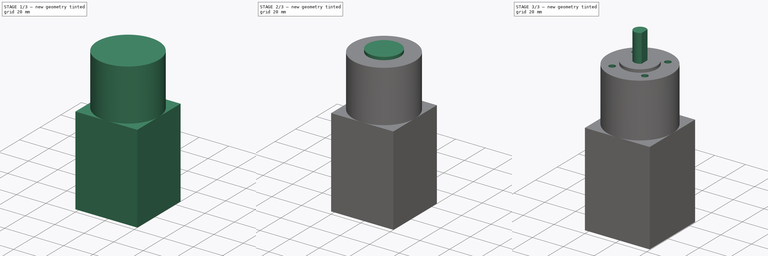
[diagram: build sequence overview — one tinted view per stage of 3, left to right]
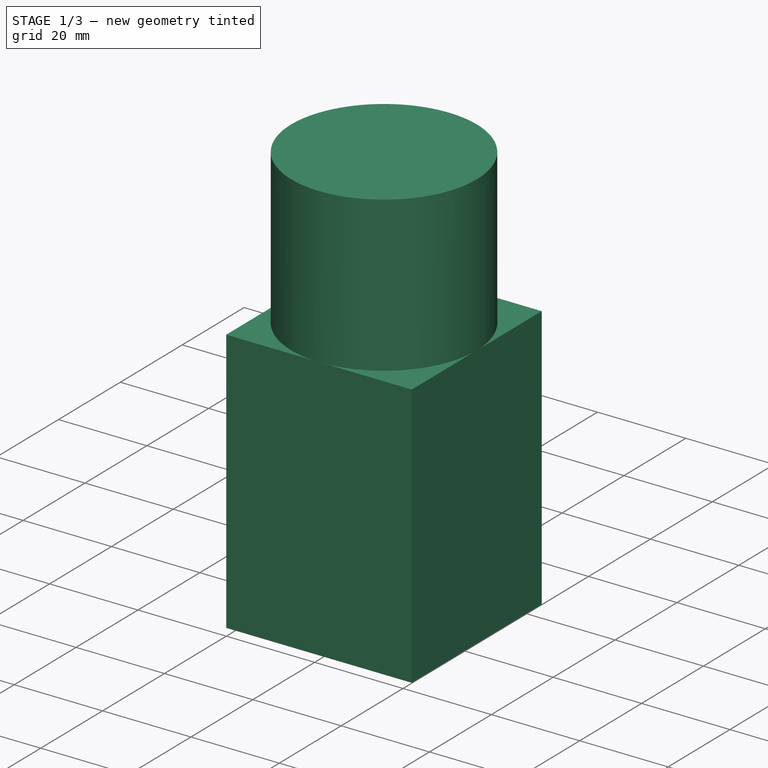
[diagram: stage 1 of 3 — iso view after this stage's code; geometry added in this stage tinted green]
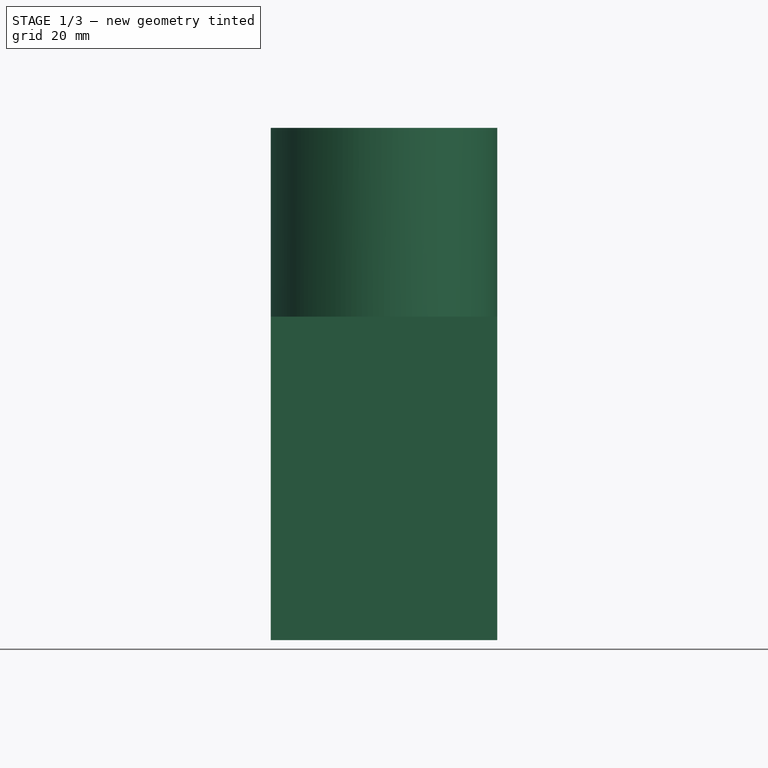
[diagram: stage 1 of 3 — front view after this stage's code; geometry added in this stage tinted green]
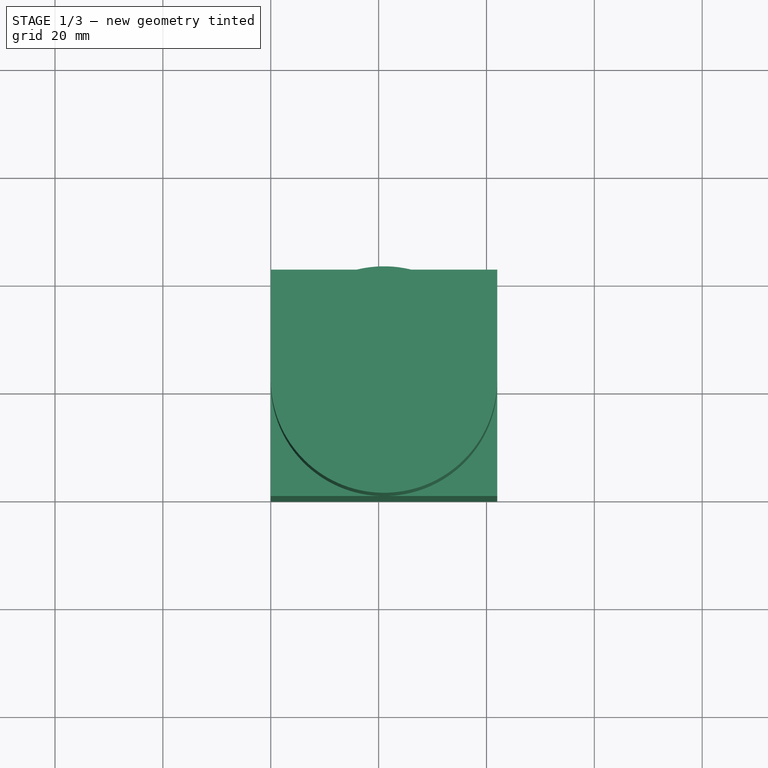
[diagram: stage 1 of 3 — top view after this stage's code; geometry added in this stage tinted green]
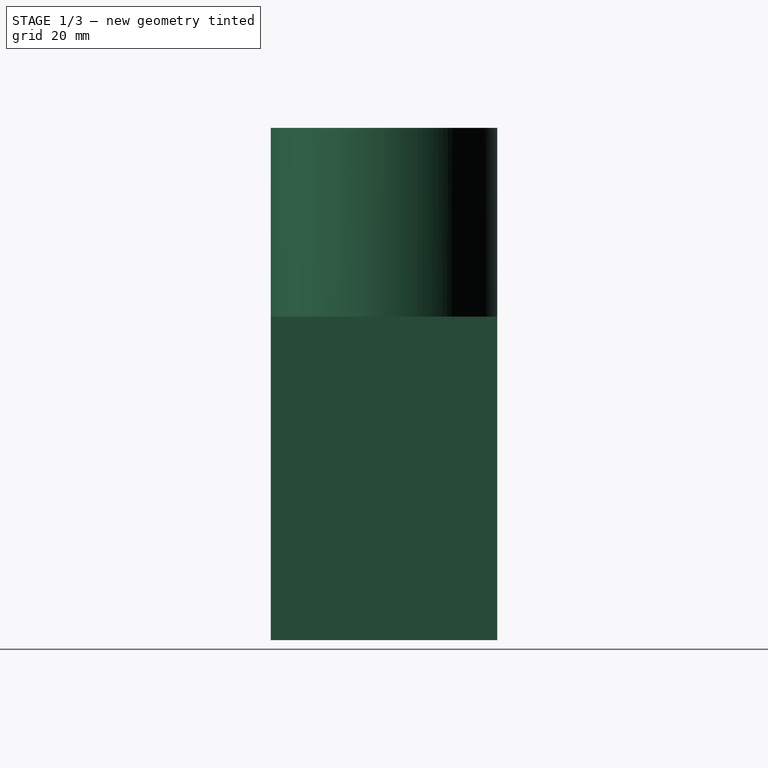
[diagram: stage 1 of 3 — right view after this stage's code; geometry added in this stage tinted green]
FCSTD DOCUMENT  (FreeCAD 0.17RUnknown)
Label: PB30605391
License: All rights reserved
LicenseURL: http://en.wikipedia.org/wiki/All_rights_reserved
objects: Sketcher::SketchObject×5, PartDesign::Pad×4, PartDesign::Pocket×1, PartDesign::Body×1, App::MeasureDistance×1
note: 16 computed .brp shape members not serialized (recipe doc carries the construction recipe); baked Part::Feature solids carry a one-line shape summary decoded from their .brp

FEATURE [Sketcher::SketchObject] Sketch
  MapMode = 5
  Support = -> [XY_Plane]
  sketch-geometry (4):
    g0: LineSegment StartX=0 StartY=0 StartZ=0 EndX=42 EndY=0 EndZ=0
    g1: LineSegment StartX=42 StartY=0 StartZ=0 EndX=42 EndY=42 EndZ=0
    g2: LineSegment StartX=42 StartY=42 StartZ=0 EndX=0 EndY=42 EndZ=0
    g3: LineSegment StartX=0 StartY=42 StartZ=0 EndX=0 EndY=0 EndZ=0
  constraints (11):
    c: Coincident(g0,g1)
    c: Coincident(g1,g2)
    c: Coincident(g2,g3)
    c: Coincident(g3,g0)
    c: Horizontal(g0)
    c: Horizontal(g2)
    c: Vertical(g1)
    c: Vertical(g3)
    c: Coincident(g0,g-1)
    c: DistanceX(g2,g2) = 42
    c: DistanceY(g3,g3) = 42
FEATURE [PartDesign::Pad] Pad
  Length = 60
  Length2 = 100
  Profile = -> Sketch
  Type = 0
FEATURE [Sketcher::SketchObject] Sketch001
  MapMode = 5
  Placement = pos=(0,0,60) rot=(0,0,1;0rad)
  Support = -> [Pad]
  sketch-geometry (1):
    g0: Circle CenterX=21 CenterY=21 CenterZ=0 NormalX=0 NormalY=0 NormalZ=1 AngleXU=0 Radius=21
  constraints (3):
    c: DistanceX(g-1,g0) = 21
    c: DistanceY(g-1,g0) = 21
    c: Radius(g0) = 21
FEATURE [PartDesign::Pad] Pad001
  BaseFeature = -> Pad
  Length = 35
  Length2 = 100
  Profile = -> Sketch001
  Type = 0
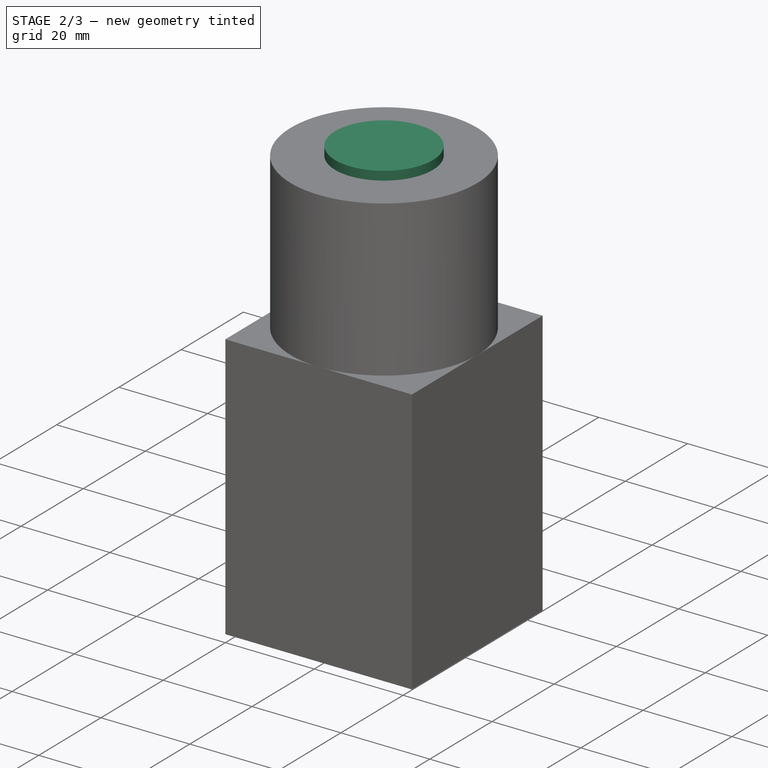
[diagram: stage 2 of 3 — iso view after this stage's code; geometry added in this stage tinted green]
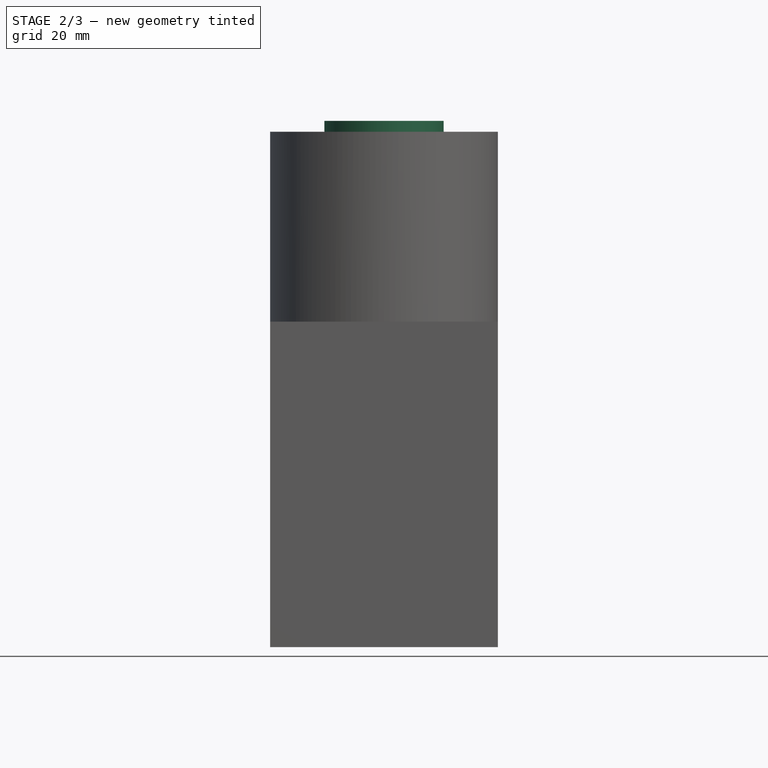
[diagram: stage 2 of 3 — front view after this stage's code; geometry added in this stage tinted green]
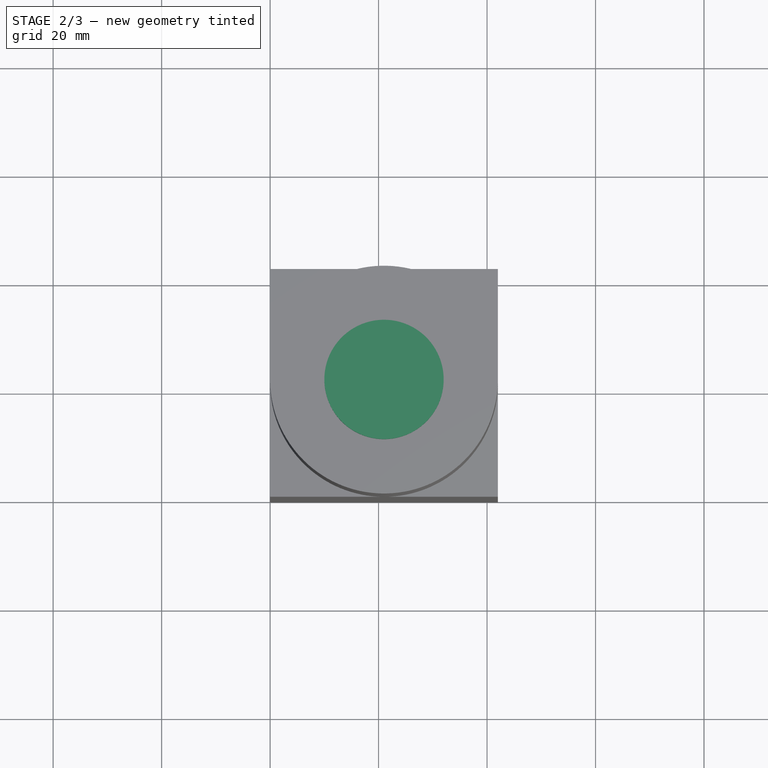
[diagram: stage 2 of 3 — top view after this stage's code; geometry added in this stage tinted green]
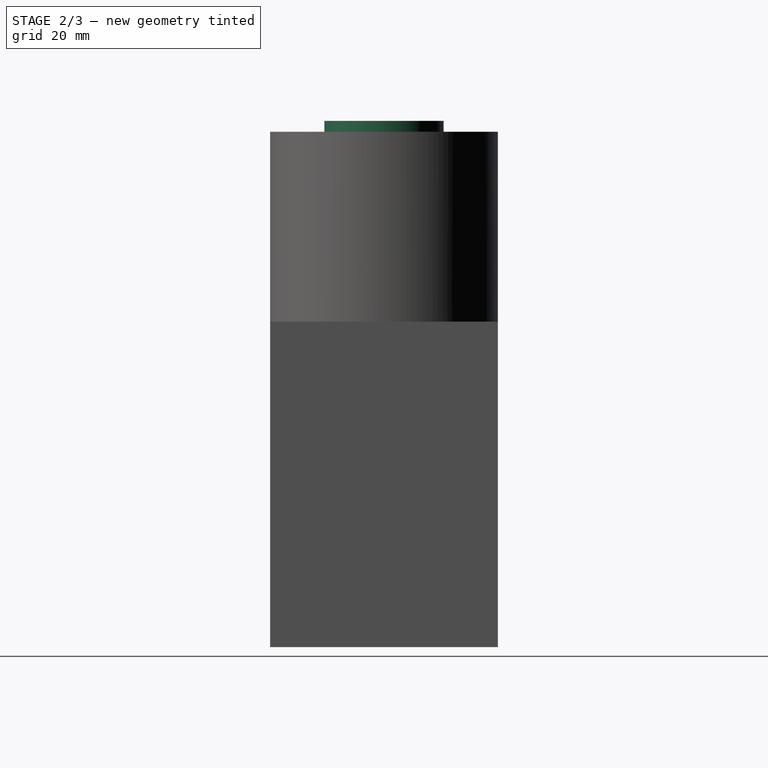
[diagram: stage 2 of 3 — right view after this stage's code; geometry added in this stage tinted green]
FEATURE [Sketcher::SketchObject] Sketch002
  MapMode = 5
  Placement = pos=(0,0,95) rot=(0,0,1;0rad)
  Support = -> [Pad001]
  sketch-geometry (1):
    g0: Circle CenterX=21 CenterY=21 CenterZ=0 NormalX=0 NormalY=0 NormalZ=1 AngleXU=0 Radius=11
  constraints (3):
    c: DistanceX(g-1,g0) = 21
    c: DistanceY(g-1,g0) = 21
    c: Radius(g0) = 11
FEATURE [PartDesign::Pad] Pad002
  BaseFeature = -> Pad001
  Length = 2
  Length2 = 100
  Profile = -> Sketch002
  Type = 0
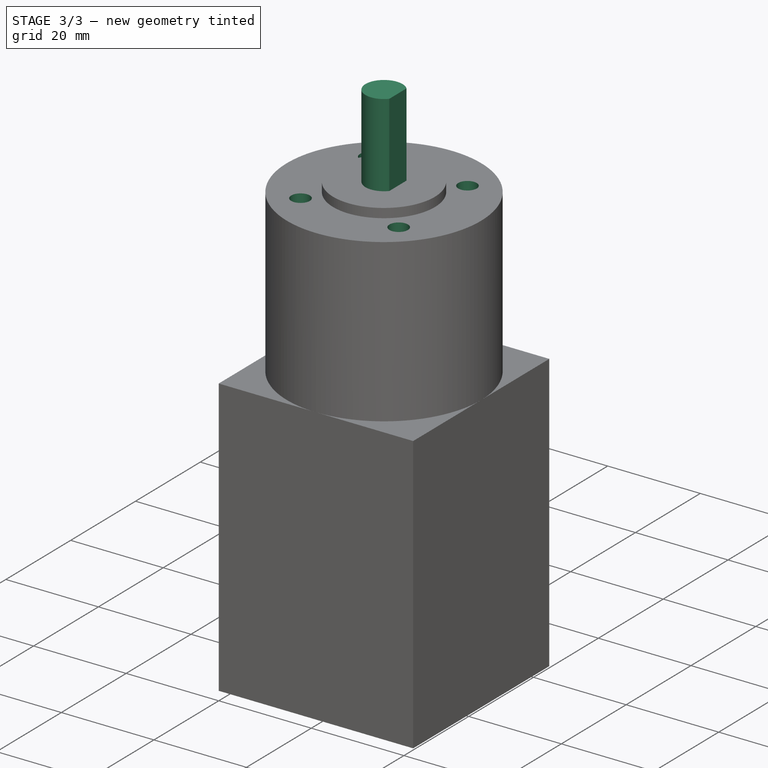
[diagram: stage 3 of 3 — iso view after this stage's code; geometry added in this stage tinted green]
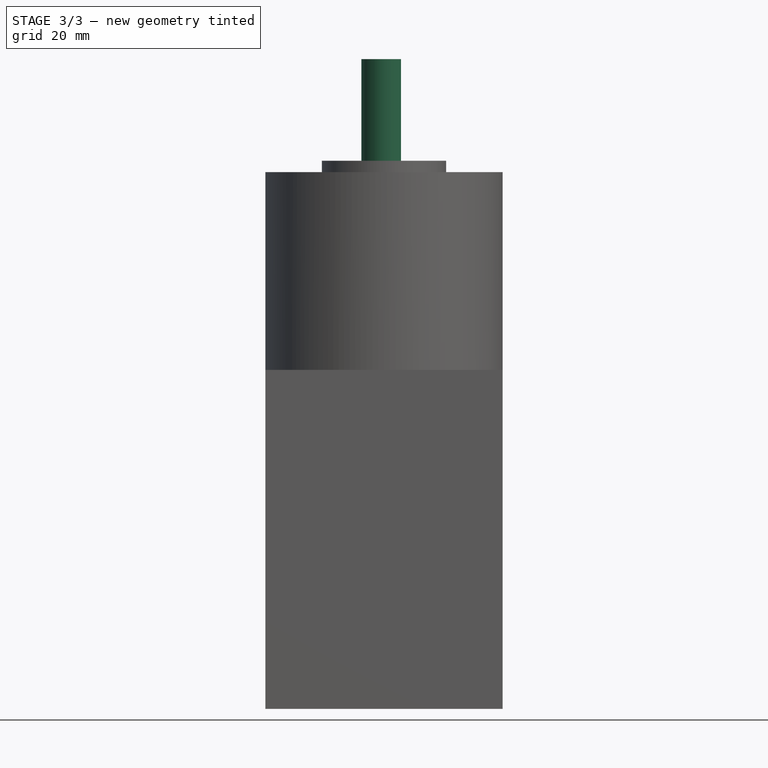
[diagram: stage 3 of 3 — front view after this stage's code; geometry added in this stage tinted green]
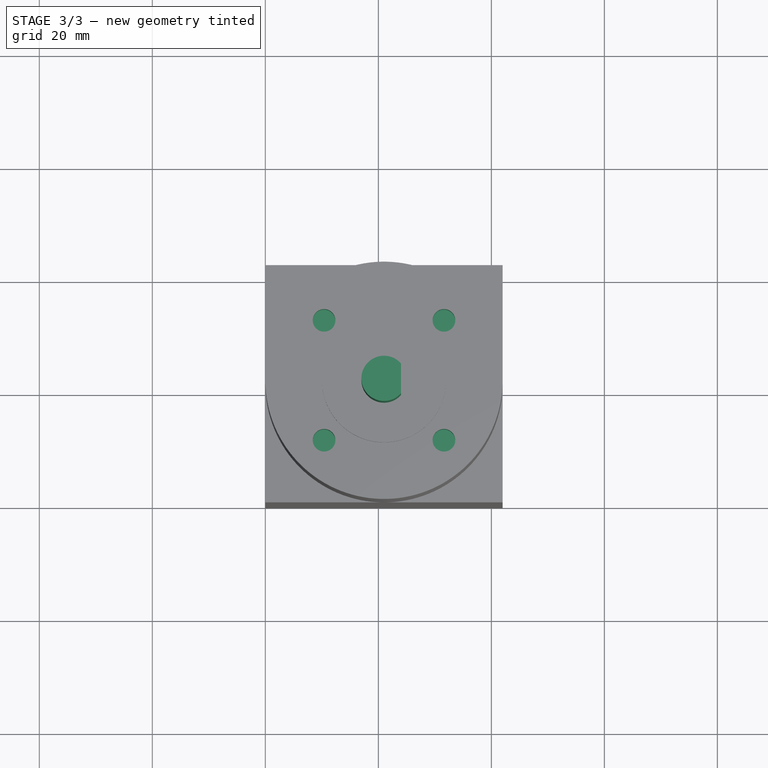
[diagram: stage 3 of 3 — top view after this stage's code; geometry added in this stage tinted green]
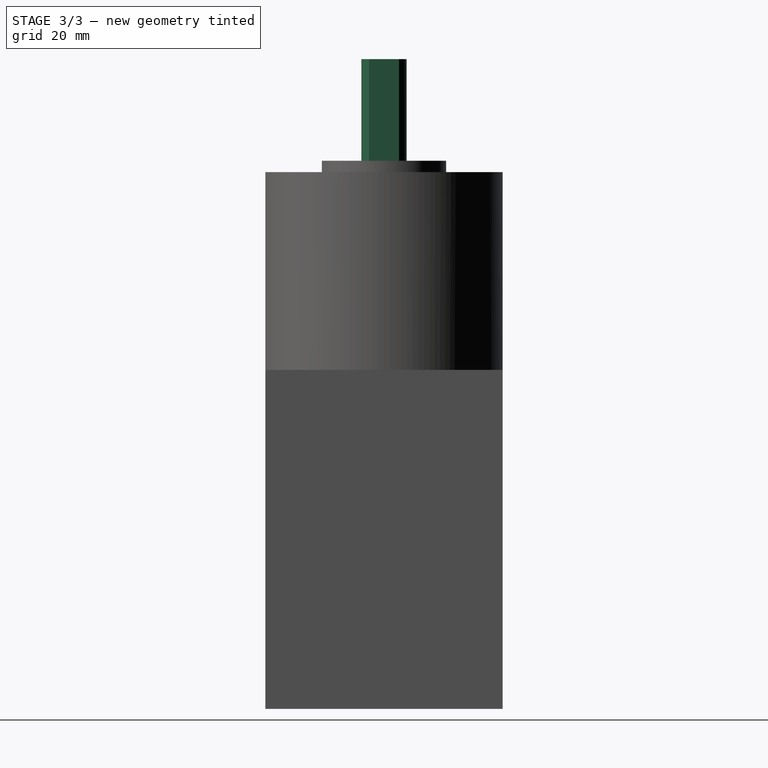
[diagram: stage 3 of 3 — right view after this stage's code; geometry added in this stage tinted green]
FEATURE [Sketcher::SketchObject] Sketch003
  MapMode = 5
  Placement = pos=(0,0,97) rot=(0,0,1;0rad)
  Support = -> [Pad002]
  sketch-geometry (2):
    g0: ArcOfCircle CenterX=21 CenterY=21 CenterZ=0 NormalX=0 NormalY=0 NormalZ=1 AngleXU=0 Radius=4 StartAngle=0.722734 EndAngle=5.56045
    g1: LineSegment StartX=24 StartY=23.6458 StartZ=0 EndX=24 EndY=18.3542 EndZ=0
  constraints (7):
    c: DistanceX(g-1,g0) = 21
    c: DistanceY(g-1,g0) = 21
    c: Coincident(g1,g0)
    c: Coincident(g1,g0)
    c: Vertical(g1)
    c: Radius(g0) = 4
    c: DistanceX(g0,g0) = 3
FEATURE [PartDesign::Pad] Pad003
  BaseFeature = -> Pad002
  Length = 18
  Length2 = 100
  Profile = -> Sketch003
  Type = 0
FEATURE [Sketcher::SketchObject] Sketch004
  ExternalGeometry = -> [Pad003]
  MapMode = 5
  Placement = pos=(0,0,95) rot=(0,0,1;0rad)
  Support = -> [Pad003]
  sketch-geometry (7):
    g0: Circle [constr] CenterX=21 CenterY=21 CenterZ=0 NormalX=0 NormalY=0 NormalZ=1 AngleXU=0 Radius=15
    g1: LineSegment [constr] StartX=0 StartY=0 StartZ=0 EndX=42 EndY=42 EndZ=0
    g2: LineSegment [constr] StartX=0 StartY=42 StartZ=0 EndX=42 EndY=0 EndZ=0
    g3: Circle CenterX=10.3934 CenterY=10.3934 CenterZ=0 NormalX=0 NormalY=0 NormalZ=1 AngleXU=0 Radius=2
    g4: Circle CenterX=31.6066 CenterY=10.3934 CenterZ=0 NormalX=0 NormalY=0 NormalZ=1 AngleXU=0 Radius=2
    g5: Circle CenterX=31.6066 CenterY=31.6066 CenterZ=0 NormalX=0 NormalY=0 NormalZ=1 AngleXU=0 Radius=2
    g6: Circle CenterX=10.3934 CenterY=31.6066 CenterZ=0 NormalX=0 NormalY=0 NormalZ=1 AngleXU=0 Radius=2
  constraints (19):
    c: DistanceX(g-1,g0) = 21
    c: DistanceY(g-1,g0) = 21
    c: Coincident(g1,g-1)
    c: Coincident(g2,g-5)
    c: Coincident(g2,g-6)
    c: PointOnObject(g3,g1)
    c: PointOnObject(g4,g2)
    c: PointOnObject(g5,g1)
    c: PointOnObject(g6,g2)
    c: PointOnObject(g6,g0)
    c: PointOnObject(g3,g0)
    c: PointOnObject(g4,g0)
    c: PointOnObject(g5,g0)
    c: Radius(g5) = 2
    c: Equal(g5,g6)
    c: Equal(g5,g3)
    c: Equal(g5,g4)
    c: Radius(g0) = 15
    c: Coincident(g1,g-4)
FEATURE [PartDesign::Pocket] Pocket
  BaseFeature = -> Pad003
  Length = 6
  Length2 = 100
  Profile = -> Sketch004
  Type = 0
FEATURE [PartDesign::Body] Body
  Group = -> [Sketch,Pad,Sketch001,Pad001,Sketch002,Pad002,Sketch003,Pad003,Sketch004,Pocket]
  Origin = -> Origin
  Tip = -> Pocket
FEATURE [App::MeasureDistance] Distance  label="Distance: 3,53 mm"
  Distance = 3.52932
  P1 = (28.8587,28.6052,97)
  P2 = (30.6394,26.2993,95.008)
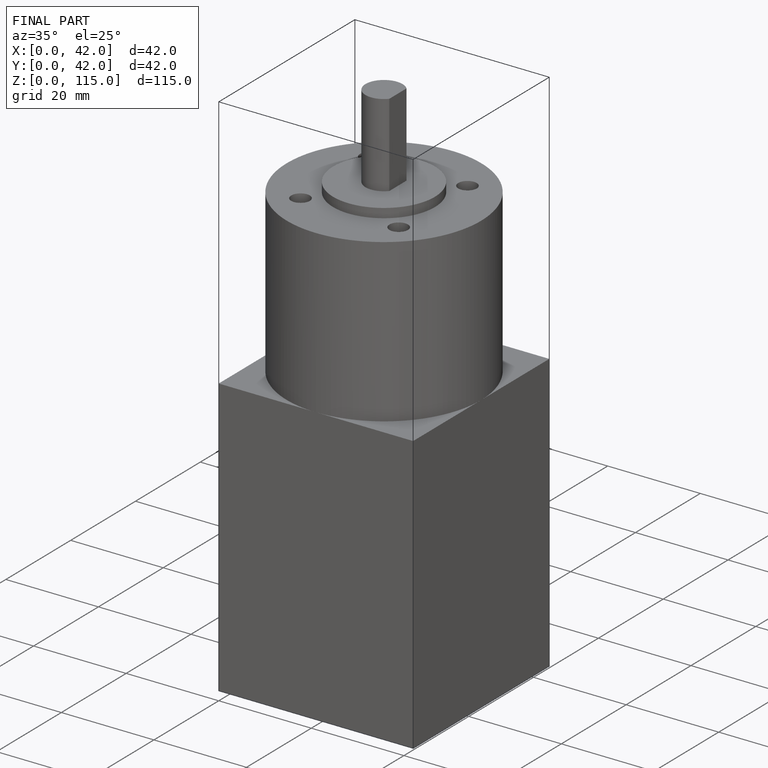
[diagram: finished part — iso view with bounding-box wireframe]
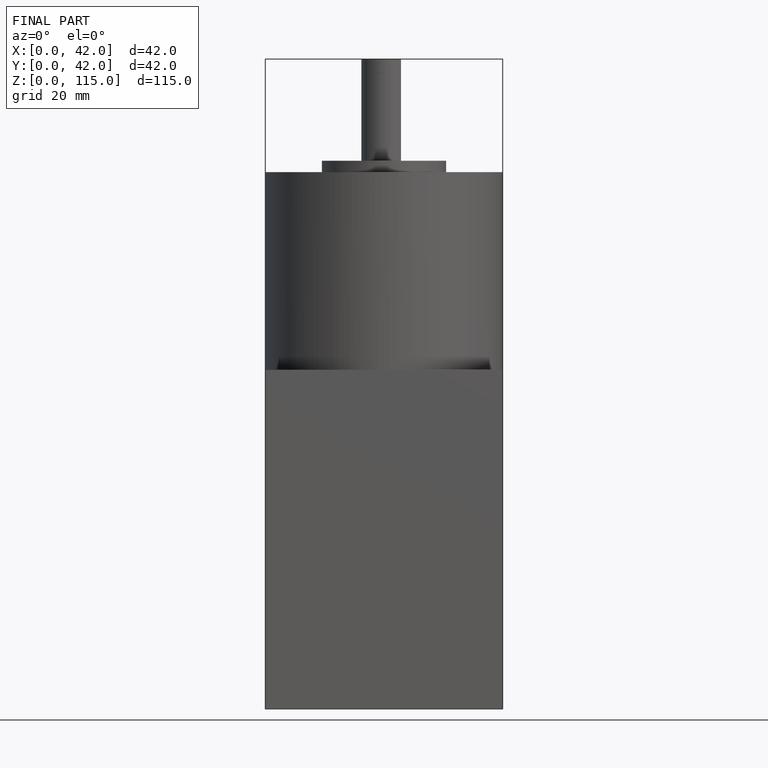
[diagram: finished part — front view with bounding-box wireframe]
